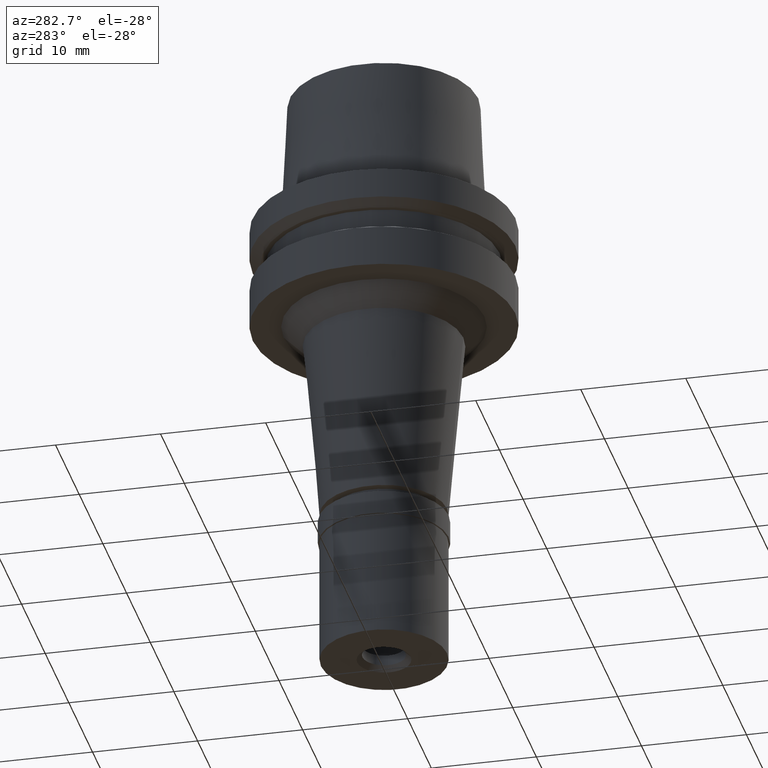
[diagram: clean part render]
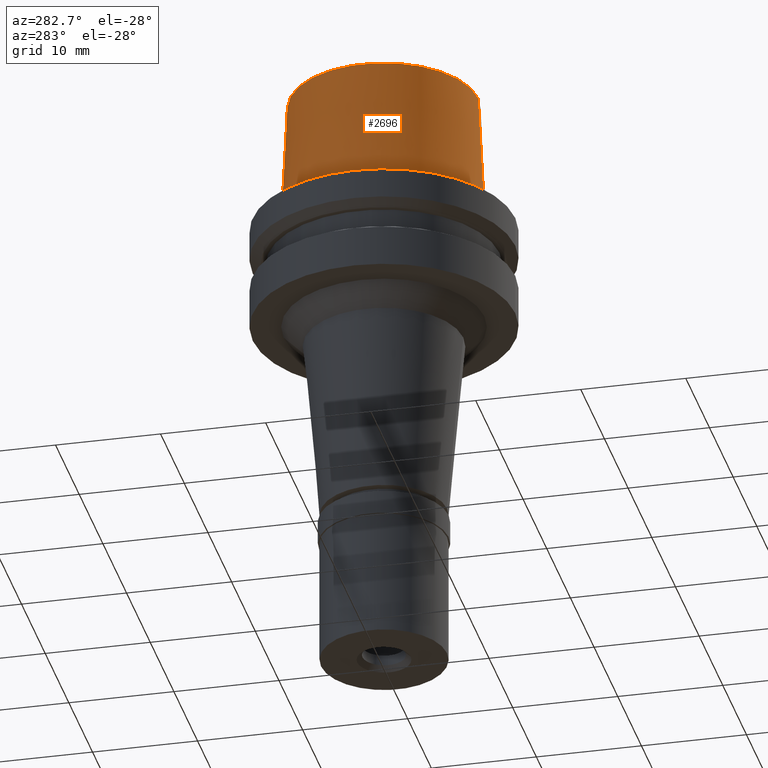
[diagram: same view with one face highlighted and labeled with its STEP entity id]
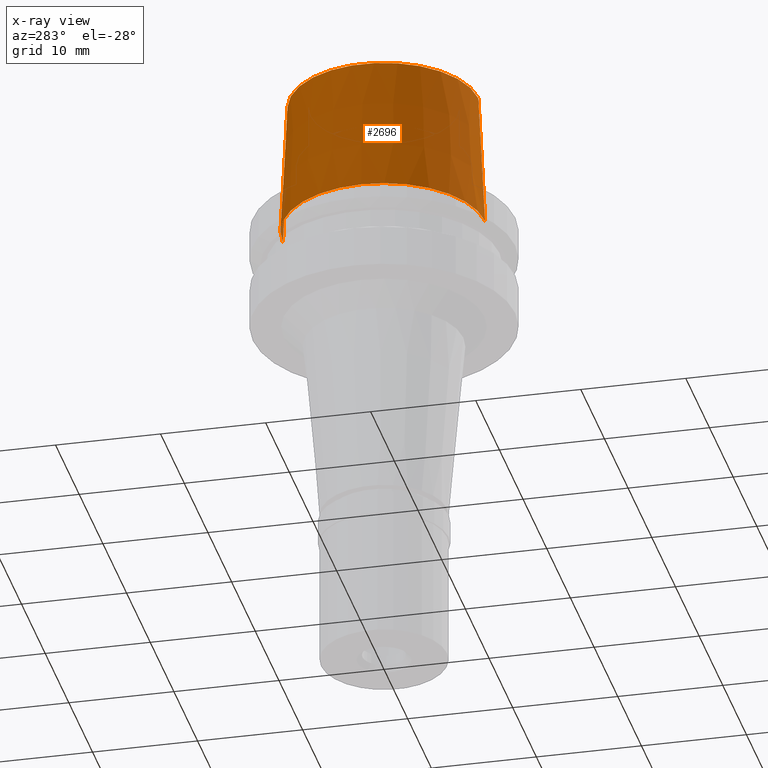
[diagram: x-ray of the same camera — body ghosted, the highlighted face saturated]
A machine part, auxiliary view. The second image highlights one B-rep face of the part: STEP entity #2696.
The next image is the same camera in x-ray: the body ghosted, the highlighted face saturated — about 1% of this face is hidden behind the body in this view.
In plain terms, the highlighted conical surface has half-angle 2.862 deg.
Its self-contained STEP definition (entity closure, byte-faithful):
#2 = VERTEX_POINT ( 'NONE', #754 ) ;
#231 = CARTESIAN_POINT ( 'NONE',  ( 0.0000000000000000000, 8.975000960130000038, 13.00000000000000000 ) ) ;
#255 = DIRECTION ( 'NONE',  ( 0.0000000000000000000, 0.0000000000000000000, -1.000000000000000000 ) ) ;
#339 = CIRCLE ( 'NONE', #1254, 8.975000960130000038 ) ;
#440 = CARTESIAN_POINT ( 'NONE',  ( 0.0000000000000000000, 0.0000000000000000000, 13.00000000000000000 ) ) ;
#609 = CARTESIAN_POINT ( 'NONE',  ( 0.0000000000000000000, -8.975000960130000038, 13.00000000000000000 ) ) ;
#643 = EDGE_CURVE ( 'NONE', #2, #1698, #2481, .T. ) ;
#731 = ORIENTED_EDGE ( 'NONE', *, *, #2609, .T. ) ;
#754 = CARTESIAN_POINT ( 'NONE',  ( 0.0000000000000000000, -8.975000960130000038, 13.00000000000000000 ) ) ;
#885 = DIRECTION ( 'NONE',  ( 0.0000000000000000000, -1.000000000000000000, 0.0000000000000000000 ) ) ;
#911 = CONICAL_SURFACE ( 'NONE', #2123, 9.300000365763999355, 0.04995830450907576964 ) ;
#1085 = DIRECTION ( 'NONE',  ( 0.0000000000000000000, 0.04993752584484958956, -0.9987523434327927330 ) ) ;
#1114 = DIRECTION ( 'NONE',  ( 0.0000000000000000000, -1.000000000000000000, 0.0000000000000000000 ) ) ;
#1248 = CIRCLE ( 'NONE', #1993, 9.624999771398000448 ) ;
#1253 = ORIENTED_EDGE ( 'NONE', *, *, #2245, .T. ) ;
#1254 = AXIS2_PLACEMENT_3D ( 'NONE', #440, #255, #885 ) ;
#1285 = VECTOR ( 'NONE', #1444, 999.9999999999998863 ) ;
#1336 = VECTOR ( 'NONE', #1085, 999.9999999999998863 ) ;
#1406 = CARTESIAN_POINT ( 'NONE',  ( 0.0000000000000000000, 9.624999771398000448, 1.332267629550000037E-13 ) ) ;
#1444 = DIRECTION ( 'NONE',  ( 0.0000000000000000000, -0.04993752584484958956, -0.9987523434327927330 ) ) ;
#1519 = FACE_OUTER_BOUND ( 'NONE', #1812, .T. ) ;
#1698 = VERTEX_POINT ( 'NONE', #2088 ) ;
#1795 = VERTEX_POINT ( 'NONE', #231 ) ;
#1812 = EDGE_LOOP ( 'NONE', ( #1253, #2208, #731, #2404 ) ) ;
#1993 = AXIS2_PLACEMENT_3D ( 'NONE', #2456, #2259, #2651 ) ;
#2088 = CARTESIAN_POINT ( 'NONE',  ( 0.0000000000000000000, -9.624999771398000448, 1.332267629550000037E-13 ) ) ;
#2123 = AXIS2_PLACEMENT_3D ( 'NONE', #2200, #2146, #1114 ) ;
#2146 = DIRECTION ( 'NONE',  ( 0.0000000000000000000, 0.0000000000000000000, -1.000000000000000000 ) ) ;
#2197 = VERTEX_POINT ( 'NONE', #1406 ) ;
#2200 = CARTESIAN_POINT ( 'NONE',  ( 0.0000000000000000000, 0.0000000000000000000, 6.500000000000000000 ) ) ;
#2208 = ORIENTED_EDGE ( 'NONE', *, *, #643, .F. ) ;
#2245 = EDGE_CURVE ( 'NONE', #2197, #1698, #1248, .T. ) ;
#2259 = DIRECTION ( 'NONE',  ( 0.0000000000000000000, 0.0000000000000000000, 1.000000000000000000 ) ) ;
#2322 = LINE ( 'NONE', #2483, #1336 ) ;
#2404 = ORIENTED_EDGE ( 'NONE', *, *, #2409, .T. ) ;
#2409 = EDGE_CURVE ( 'NONE', #1795, #2197, #2322, .T. ) ;
#2456 = CARTESIAN_POINT ( 'NONE',  ( 0.0000000000000000000, 0.0000000000000000000, 2.557953848736000191E-13 ) ) ;
#2481 = LINE ( 'NONE', #609, #1285 ) ;
#2483 = CARTESIAN_POINT ( 'NONE',  ( 0.0000000000000000000, 8.975000960130000038, 13.00000000000000000 ) ) ;
#2609 = EDGE_CURVE ( 'NONE', #2, #1795, #339, .T. ) ;
#2651 = DIRECTION ( 'NONE',  ( 0.0000000000000000000, 1.000000000000000000, 0.0000000000000000000 ) ) ;
#2696 = ADVANCED_FACE ( 'NONE', ( #1519 ), #911, .T. ) ;